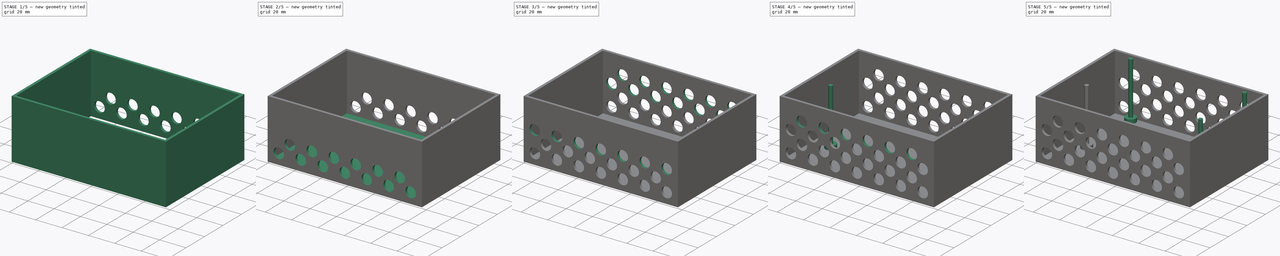
[diagram: build sequence overview — one tinted view per stage of 5, left to right]
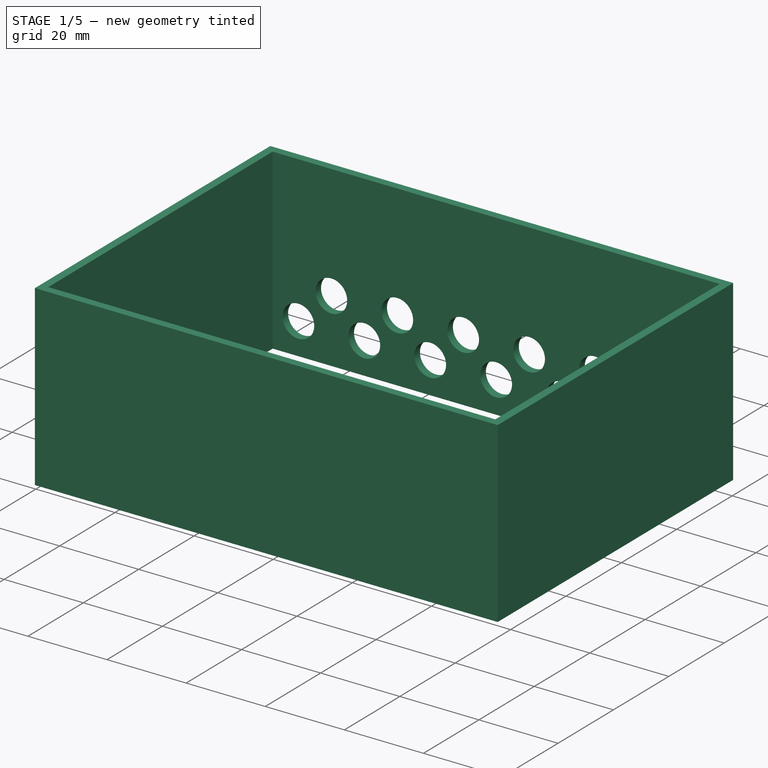
[diagram: stage 1 of 5 — iso view after this stage's code; geometry added in this stage tinted green]
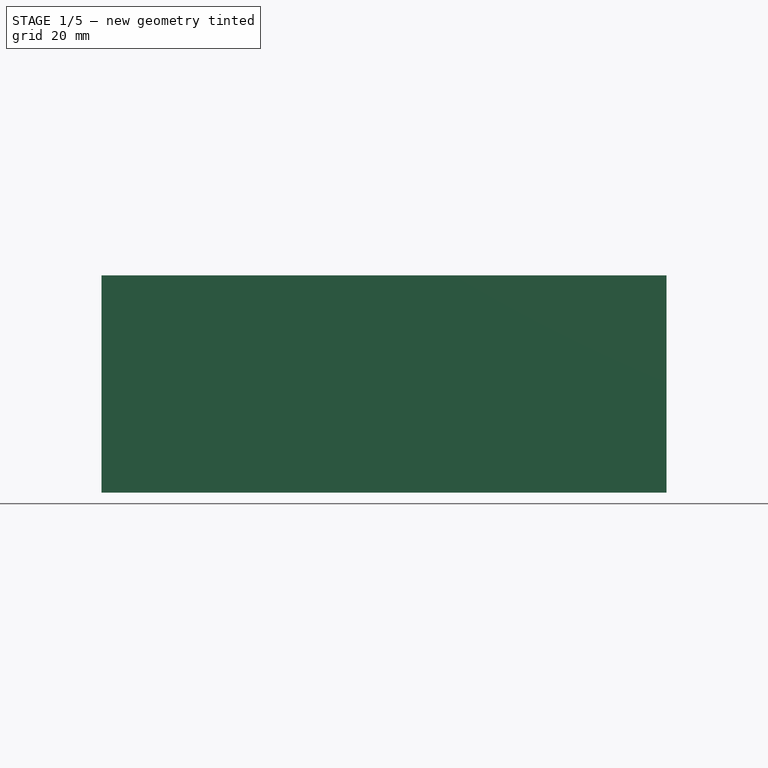
[diagram: stage 1 of 5 — front view after this stage's code; geometry added in this stage tinted green]
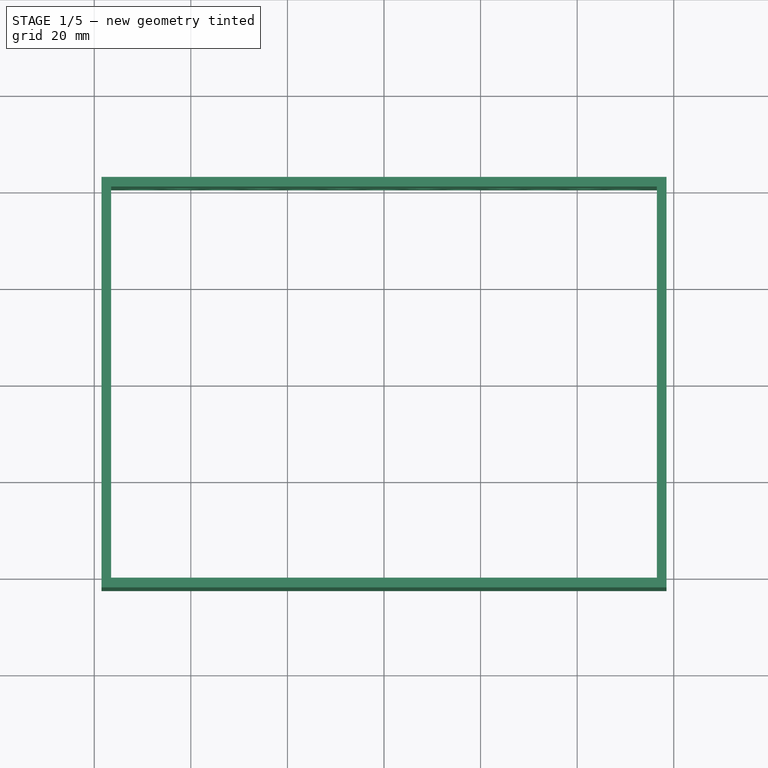
[diagram: stage 1 of 5 — top view after this stage's code; geometry added in this stage tinted green]
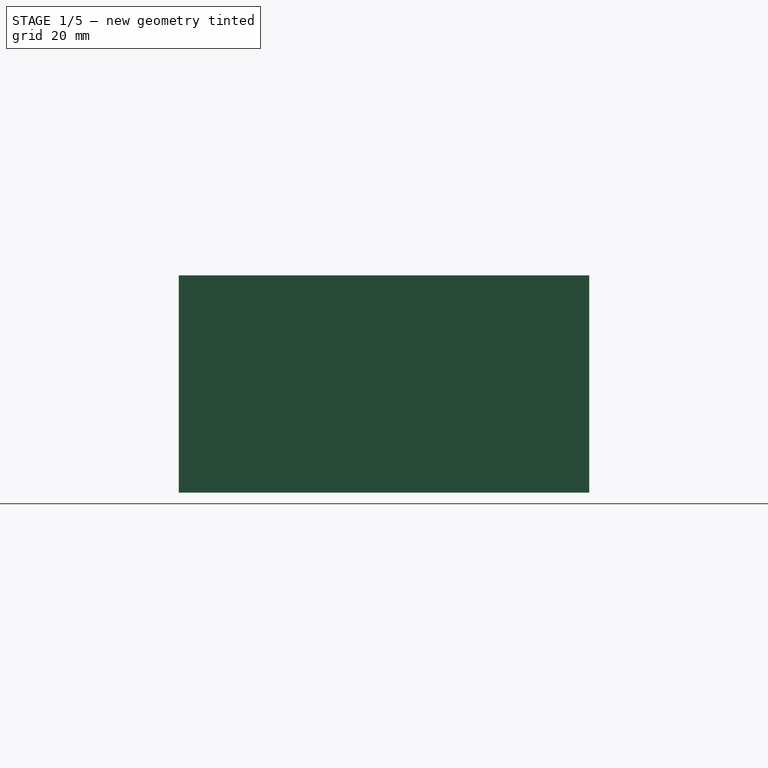
[diagram: stage 1 of 5 — right view after this stage's code; geometry added in this stage tinted green]
FCSTD DOCUMENT  (FreeCAD 0.14R3702 (Git))
Label: Modelodelgabinete2
License: CC-BY 3.0
LicenseURL: http://creativecommons.org/licenses/by/3.0/
objects: Sketcher::SketchObject×17, PartDesign::LinearPattern×10, PartDesign::Pad×8, PartDesign::Pocket×8
note: 59 computed .brp shape members not serialized (recipe doc carries the construction recipe); baked Part::Feature solids carry a one-line shape summary decoded from their .brp

FEATURE [Sketcher::SketchObject] Sketch
  sketch-geometry (8):
    g0: LineSegment StartX=-58.5 StartY=-42.5 StartZ=0 EndX=58.5 EndY=-42.5 EndZ=0
    g1: LineSegment StartX=58.5 StartY=-42.5 StartZ=0 EndX=58.5 EndY=42.5 EndZ=0
    g2: LineSegment StartX=58.5 StartY=42.5 StartZ=0 EndX=-58.5 EndY=42.5 EndZ=0
    g3: LineSegment StartX=-58.5 StartY=42.5 StartZ=0 EndX=-58.5 EndY=-42.5 EndZ=0
    g4: LineSegment StartX=-56.5 StartY=-40.5 StartZ=0 EndX=56.5 EndY=-40.5 EndZ=0
    g5: LineSegment StartX=56.5 StartY=-40.5 StartZ=0 EndX=56.5 EndY=40.5 EndZ=0
    g6: LineSegment StartX=56.5 StartY=40.5 StartZ=0 EndX=-56.5 EndY=40.5 EndZ=0
    g7: LineSegment StartX=-56.5 StartY=40.5 StartZ=0 EndX=-56.5 EndY=-40.5 EndZ=0
  constraints (24):
    c: Coincident(g0,g1)
    c: Coincident(g1,g2)
    c: Coincident(g2,g3)
    c: Coincident(g3,g0)
    c: Horizontal(g0)
    c: Horizontal(g2)
    c: Vertical(g1)
    c: Vertical(g3)
    c: DistanceY(g3) = -85
    c: DistanceX(g0) = 117
    c: DistanceY(g-1,g0) = -42.5
    c: DistanceX(g-1,g0) = -58.5
    c: Coincident(g4,g5)
    c: Coincident(g5,g6)
    c: Coincident(g6,g7)
    c: Coincident(g7,g4)
    c: Horizontal(g4)
    c: Horizontal(g6)
    c: Vertical(g5)
    c: Vertical(g7)
    c: DistanceY(g0,g4) = 2
    c: DistanceX(g0,g4) = 2
    c: DistanceX(g5,g1) = 2
    c: DistanceY(g1,g5) = -2
FEATURE [PartDesign::Pad] Pad
  Length = 45
  Length2 = 100
  Sketch = -> Sketch
  Type = 0
FEATURE [Sketcher::SketchObject] Sketch001
  Placement = pos=(0,42.5,0) rot=(0,0.707107,0.707107;3.14159rad)
  Support = -> Pad [Face3]
  sketch-geometry (1):
    g0: Circle CenterX=-50 CenterY=8 CenterZ=0 NormalX=0 NormalY=0 NormalZ=1 Radius=4
  constraints (3):
    c: DistanceX(g-1,g0) = -50
    c: DistanceY(g-1,g0) = 8
    c: Radius(g0) = 4
FEATURE [PartDesign::Pocket] Pocket
  Length = 5
  Sketch = -> Sketch001
  Type = 0
FEATURE [PartDesign::LinearPattern] LinearPattern
  Direction = -> Sketch001 [H_Axis]
  Length = 100
  Occurrences = 7
  Originals = -> [Pocket]
FEATURE [Sketcher::SketchObject] Sketch002
  Placement = pos=(0,42.5,0) rot=(0,0.707107,0.707107;3.14159rad)
  Support = -> LinearPattern [Face6]
  sketch-geometry (1):
    g0: Circle CenterX=-41.66 CenterY=16 CenterZ=0 NormalX=0 NormalY=0 NormalZ=1 Radius=4
  constraints (3):
    c: Radius(g0) = 4
    c: DistanceX(g-1,g0) = -41.66
    c: DistanceY(g-1,g0) = 16
FEATURE [PartDesign::Pocket] Pocket001
  Length = 5
  Sketch = -> Sketch002
  Type = 0
FEATURE [PartDesign::LinearPattern] LinearPattern001
  Direction = -> Sketch002 [H_Axis]
  Length = 83.33
  Occurrences = 6
  Originals = -> [Pocket001]
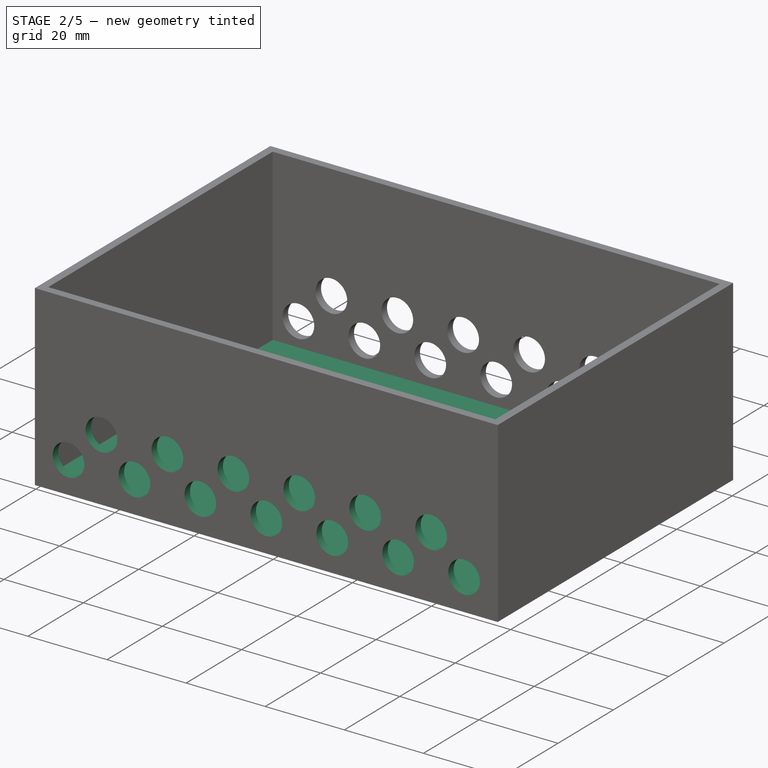
[diagram: stage 2 of 5 — iso view after this stage's code; geometry added in this stage tinted green]
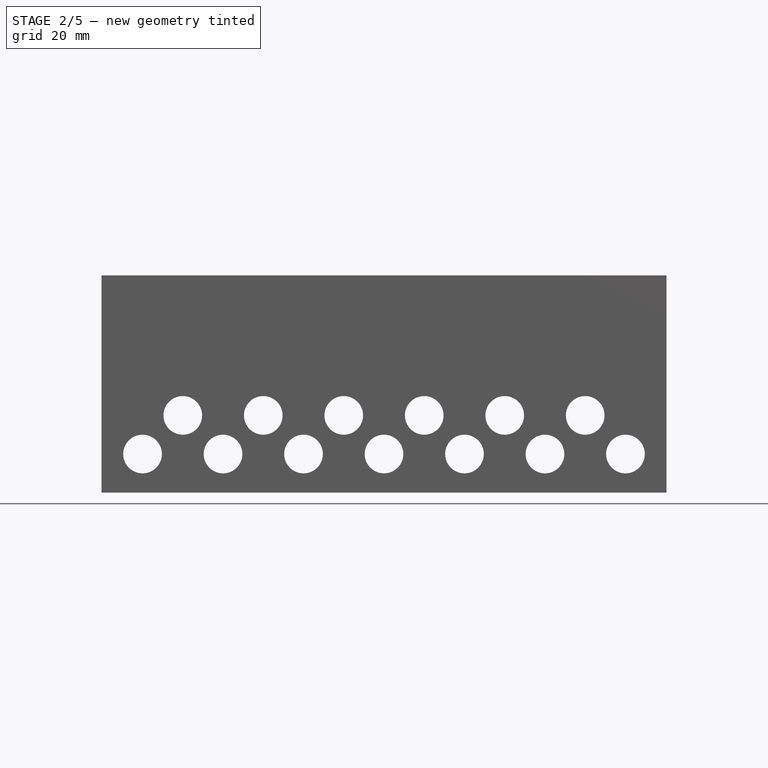
[diagram: stage 2 of 5 — front view after this stage's code; geometry added in this stage tinted green]
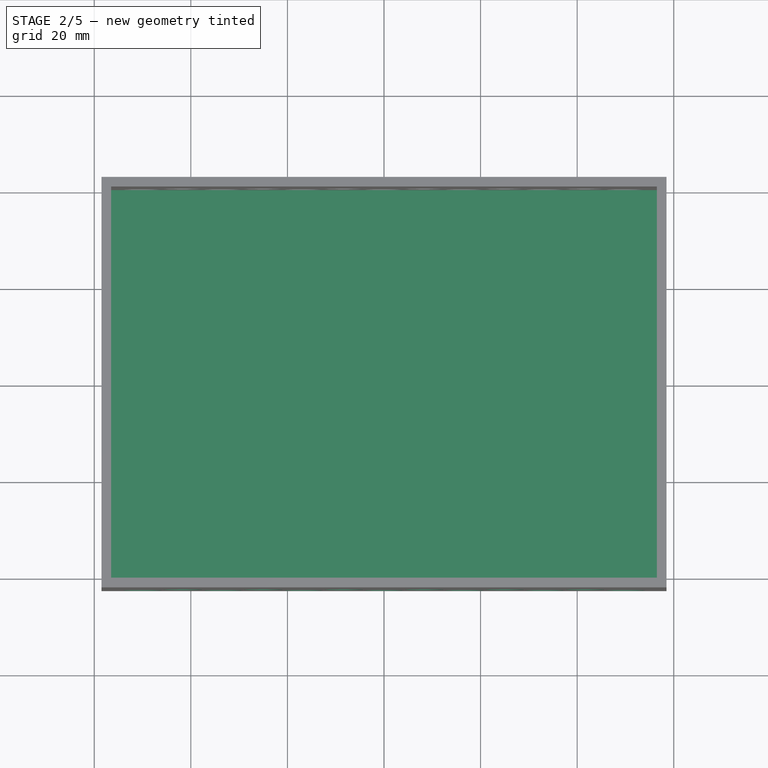
[diagram: stage 2 of 5 — top view after this stage's code; geometry added in this stage tinted green]
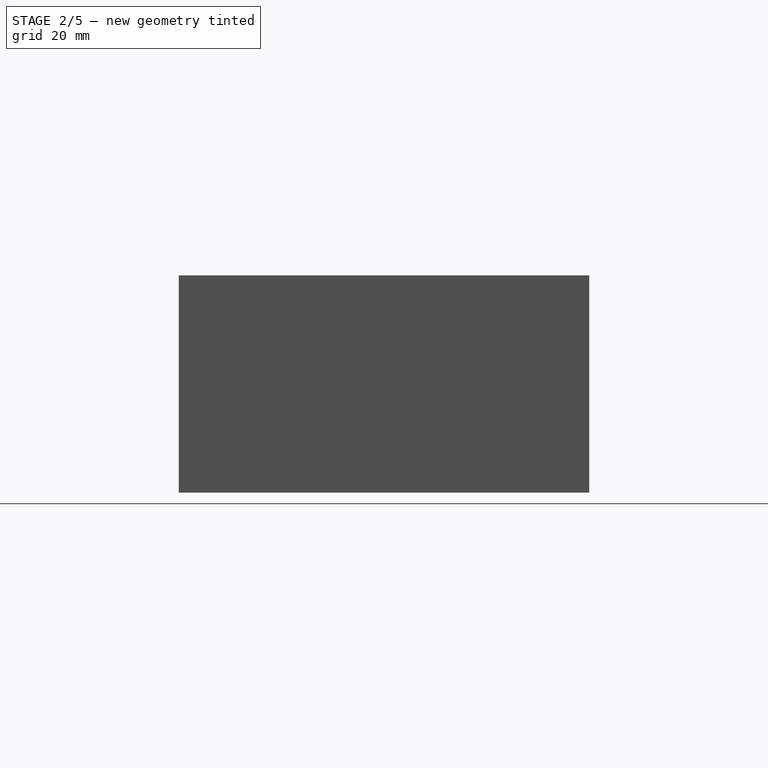
[diagram: stage 2 of 5 — right view after this stage's code; geometry added in this stage tinted green]
FEATURE [Sketcher::SketchObject] Sketch003
  Placement = pos=(0,0,0) rot=(1,0,0;3.14159rad)
  Support = -> LinearPattern001 [Face4]
  sketch-geometry (4):
    g0: LineSegment StartX=-58.5 StartY=-42.5 StartZ=0 EndX=58.5 EndY=-42.5 EndZ=0
    g1: LineSegment StartX=58.5 StartY=-42.5 StartZ=0 EndX=58.5 EndY=42.5 EndZ=0
    g2: LineSegment StartX=58.5 StartY=42.5 StartZ=0 EndX=-58.5 EndY=42.5 EndZ=0
    g3: LineSegment StartX=-58.5 StartY=42.5 StartZ=0 EndX=-58.5 EndY=-42.5 EndZ=0
  constraints (12):
    c: Coincident(g0,g1)
    c: Coincident(g1,g2)
    c: Coincident(g2,g3)
    c: Coincident(g3,g0)
    c: Horizontal(g0)
    c: Horizontal(g2)
    c: Vertical(g1)
    c: Vertical(g3)
    c: DistanceY(g1) = 85
    c: DistanceX(g0) = 117
    c: DistanceY(g-1,g0) = -42.5
    c: DistanceX(g-1,g0) = 58.5
FEATURE [PartDesign::Pad] Pad001
  Length = 2
  Length2 = 100
  Reversed = true
  Sketch = -> Sketch003
  Type = 0
FEATURE [Sketcher::SketchObject] Sketch004
  Placement = pos=(0,-42.5,0) rot=(1,0,0;1.5708rad)
  Support = -> Pad001 [Face2]
  sketch-geometry (1):
    g0: Circle CenterX=-50 CenterY=8 CenterZ=0 NormalX=0 NormalY=0 NormalZ=1 Radius=4
  constraints (3):
    c: Radius(g0) = 4
    c: DistanceX(g-1,g0) = -50
    c: DistanceY(g-1,g0) = 8
FEATURE [PartDesign::Pocket] Pocket002
  Length = 5
  Sketch = -> Sketch004
  Type = 0
FEATURE [PartDesign::LinearPattern] LinearPattern002
  Direction = -> Sketch004 [H_Axis]
  Length = 100
  Occurrences = 7
  Originals = -> [Pocket002]
FEATURE [Sketcher::SketchObject] Sketch005
  Placement = pos=(0,-42.5,0) rot=(1,0,0;1.5708rad)
  Support = -> LinearPattern002 [Face2]
  sketch-geometry (1):
    g0: Circle CenterX=-41.666 CenterY=16 CenterZ=0 NormalX=0 NormalY=0 NormalZ=1 Radius=4
  constraints (3):
    c: DistanceY(g-1,g0) = 16
    c: Radius(g0) = 4
    c: DistanceX(g-1,g0) = -41.666
FEATURE [PartDesign::Pocket] Pocket003
  Length = 5
  Sketch = -> Sketch005
  Type = 0
FEATURE [PartDesign::LinearPattern] LinearPattern003
  Direction = -> Sketch005 [H_Axis]
  Length = 83.33
  Occurrences = 6
  Originals = -> [Pocket003]
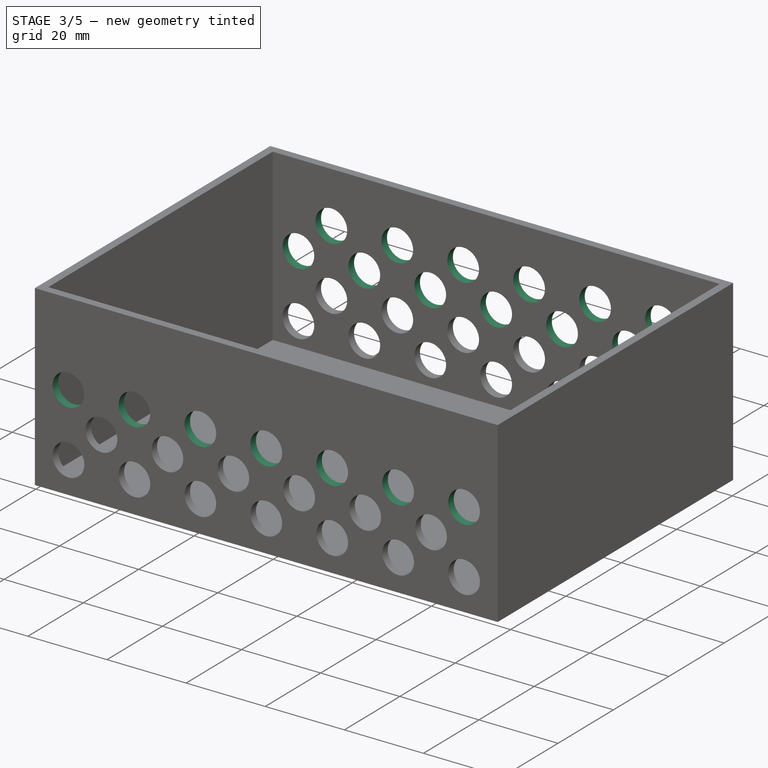
[diagram: stage 3 of 5 — iso view after this stage's code; geometry added in this stage tinted green]
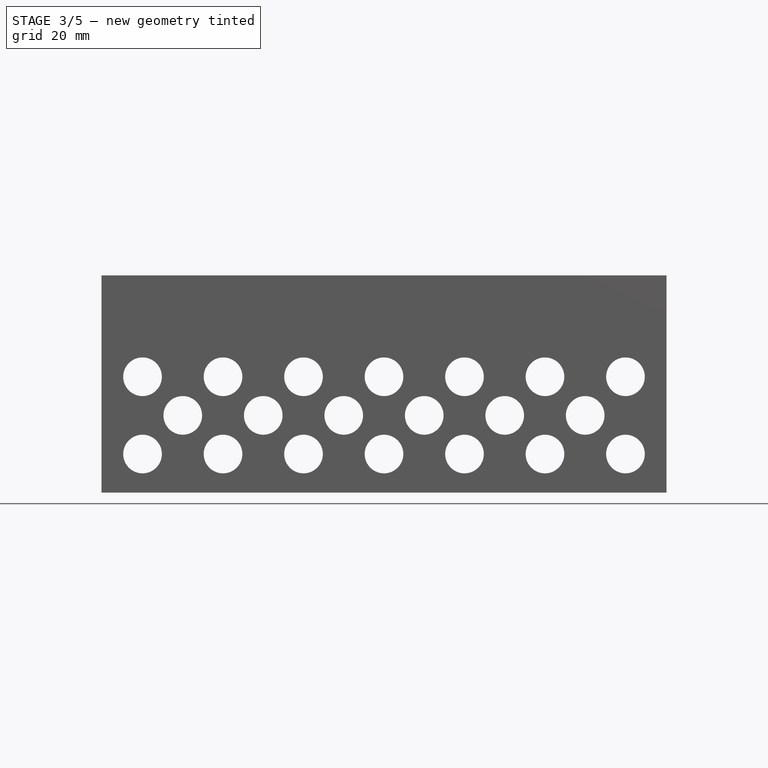
[diagram: stage 3 of 5 — front view after this stage's code; geometry added in this stage tinted green]
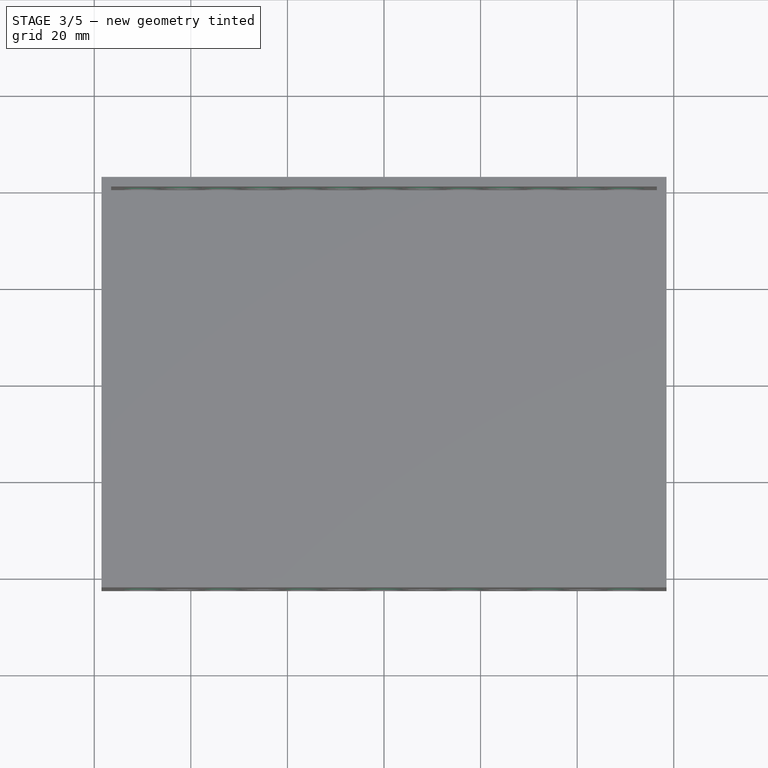
[diagram: stage 3 of 5 — top view after this stage's code; geometry added in this stage tinted green]
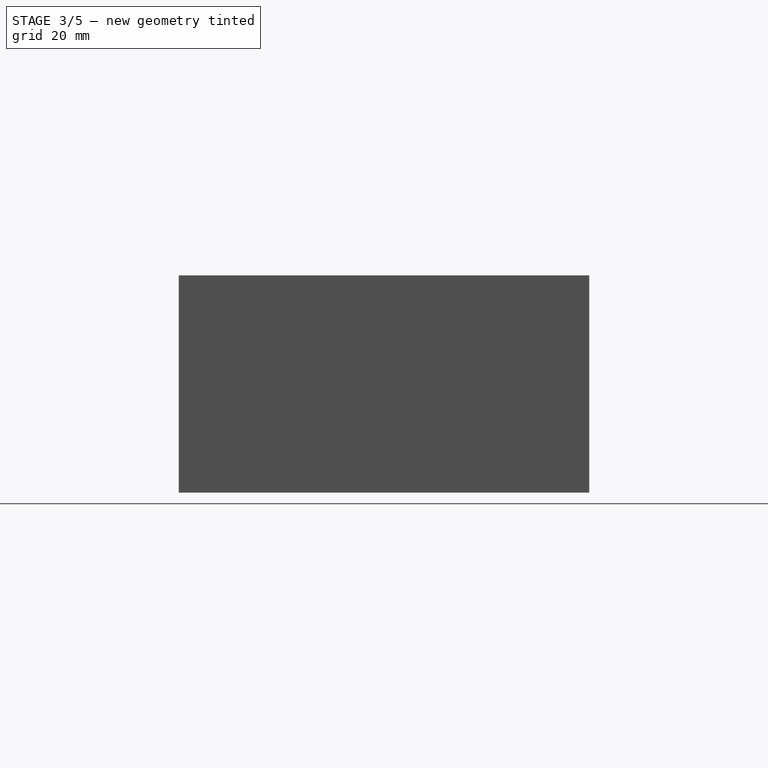
[diagram: stage 3 of 5 — right view after this stage's code; geometry added in this stage tinted green]
FEATURE [Sketcher::SketchObject] Sketch006
  Placement = pos=(0,-42.5,0) rot=(1,0,0;1.5708rad)
  Support = -> LinearPattern003 [Face2]
  sketch-geometry (1):
    g0: Circle CenterX=-50 CenterY=24 CenterZ=0 NormalX=0 NormalY=0 NormalZ=1 Radius=4
  constraints (3):
    c: Radius(g0) = 4
    c: DistanceX(g-1,g0) = -50
    c: DistanceY(g-1,g0) = 24
FEATURE [PartDesign::Pocket] Pocket004
  Length = 5
  Sketch = -> Sketch006
  Type = 0
FEATURE [PartDesign::LinearPattern] LinearPattern004
  Direction = -> Sketch006 [H_Axis]
  Length = 100
  Occurrences = 7
  Originals = -> [Pocket004]
FEATURE [Sketcher::SketchObject] Sketch007
  Placement = pos=(0,42.5,0) rot=(0,0.707107,0.707107;3.14159rad)
  Support = -> LinearPattern004 [Face4]
  sketch-geometry (1):
    g0: Circle CenterX=-50 CenterY=24 CenterZ=0 NormalX=0 NormalY=0 NormalZ=1 Radius=4
  constraints (3):
    c: Radius(g0) = 4
    c: DistanceX(g-1,g0) = -50
    c: DistanceY(g-1,g0) = 24
FEATURE [PartDesign::Pocket] Pocket005
  Length = 5
  Sketch = -> Sketch007
  Type = 0
FEATURE [PartDesign::LinearPattern] LinearPattern005
  Direction = -> Sketch007 [H_Axis]
  Length = 100
  Occurrences = 7
  Originals = -> [Pocket005]
FEATURE [Sketcher::SketchObject] Sketch008
  Placement = pos=(0,42.5,0) rot=(0,0.707107,0.707107;3.14159rad)
  Support = -> LinearPattern005 [Face4]
  sketch-geometry (1):
    g0: Circle CenterX=-41.66 CenterY=32 CenterZ=0 NormalX=0 NormalY=0 NormalZ=1 Radius=4
  constraints (3):
    c: Radius(g0) = 4
    c: DistanceY(g-1,g0) = 32
    c: DistanceX(g-1,g0) = -41.66
FEATURE [PartDesign::Pocket] Pocket006
  Length = 5
  Sketch = -> Sketch008
  Type = 0
FEATURE [PartDesign::LinearPattern] LinearPattern006
  Direction = -> Sketch008 [H_Axis]
  Length = 83.33
  Occurrences = 6
  Originals = -> [Pocket006]
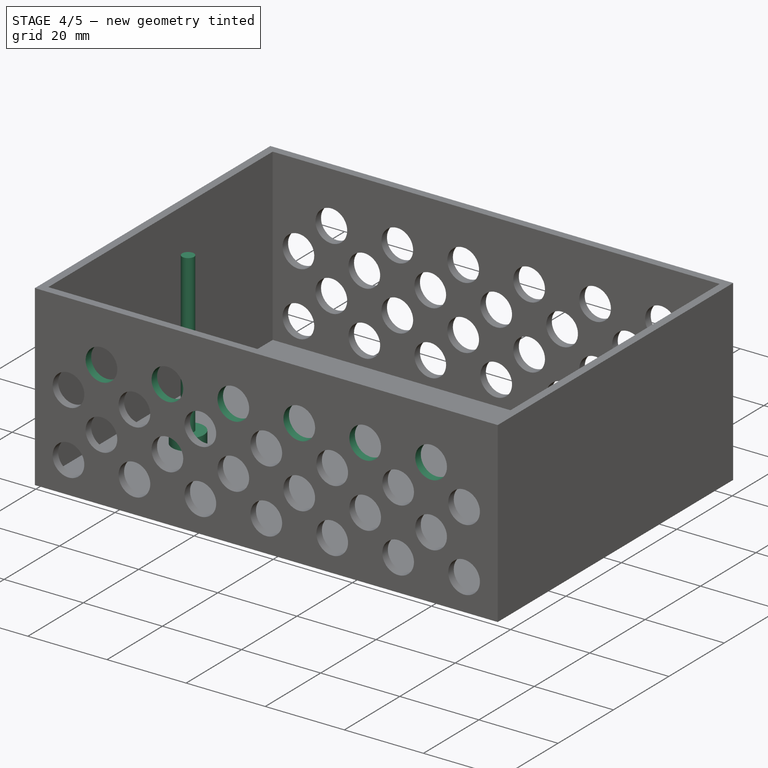
[diagram: stage 4 of 5 — iso view after this stage's code; geometry added in this stage tinted green]
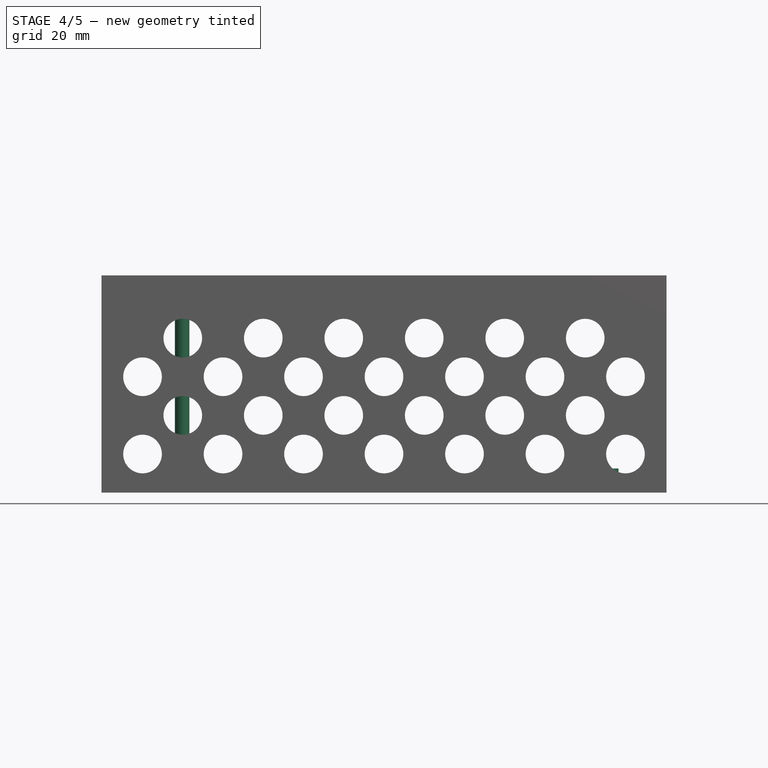
[diagram: stage 4 of 5 — front view after this stage's code; geometry added in this stage tinted green]
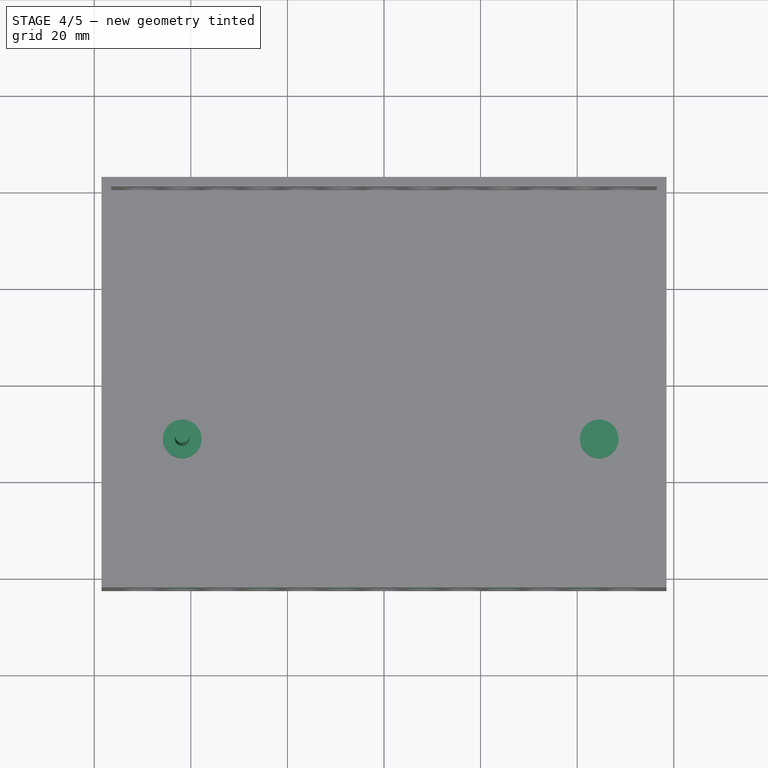
[diagram: stage 4 of 5 — top view after this stage's code; geometry added in this stage tinted green]
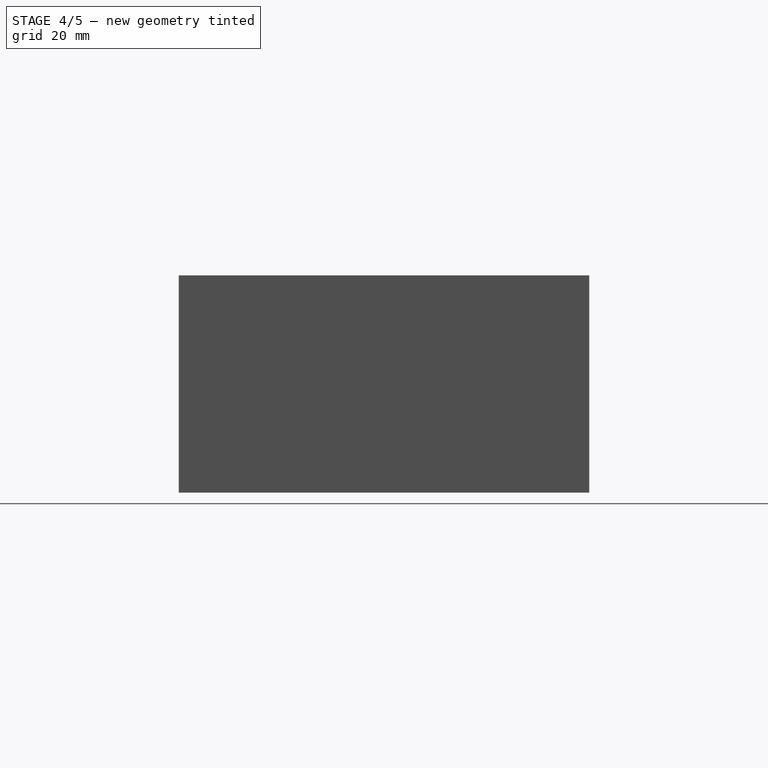
[diagram: stage 4 of 5 — right view after this stage's code; geometry added in this stage tinted green]
FEATURE [Sketcher::SketchObject] Sketch009
  Placement = pos=(0,-42.5,0) rot=(1,0,0;1.5708rad)
  Support = -> LinearPattern006 [Face2]
  sketch-geometry (1):
    g0: Circle CenterX=-41.66 CenterY=32 CenterZ=0 NormalX=0 NormalY=0 NormalZ=1 Radius=4
  constraints (3):
    c: Radius(g0) = 4
    c: DistanceY(g-1,g0) = 32
    c: DistanceX(g-1,g0) = -41.66
FEATURE [PartDesign::Pocket] Pocket007
  Length = 5
  Sketch = -> Sketch009
  Type = 0
FEATURE [PartDesign::LinearPattern] LinearPattern007
  Direction = -> Sketch009 [H_Axis]
  Length = 83.33
  Occurrences = 6
  Originals = -> [Pocket007]
FEATURE [Sketcher::SketchObject] Sketch011
  Placement = pos=(0,0,2) rot=(0,0,1;0rad)
  Support = -> LinearPattern007 [Face66]
  sketch-geometry (2):
    g0: Circle CenterX=-41.795 CenterY=-11.049 CenterZ=0 NormalX=0 NormalY=0 NormalZ=1 Radius=4
    g1: GeomPoint [constr] X=-56.495 Y=40.471 Z=0
  constraints (5):
    c: DistanceY(g1,g0) = -51.52
    c: DistanceY(g-1,g1) = 40.471
    c: DistanceX(g-1,g1) = -56.495
    c: Radius(g0) = 4
    c: DistanceX(g0,g1) = -14.7
FEATURE [PartDesign::Pad] Pad003
  Length = 3
  Length2 = 100
  Sketch = -> Sketch011
  Type = 0
FEATURE [PartDesign::LinearPattern] LinearPattern009
  Direction = -> Sketch011 [H_Axis]
  Length = 86.36
  Occurrences = 2
  Originals = -> [Pad003]
FEATURE [Sketcher::SketchObject] Sketch014
  ExternalGeometry = -> [LinearPattern009]
  Placement = pos=(0,0,5) rot=(0,0,1;0rad)
  Support = -> LinearPattern009 [Face1]
  sketch-geometry (1):
    g0: Circle CenterX=-41.795 CenterY=-11.049 CenterZ=0 NormalX=0 NormalY=0 NormalZ=1 Radius=1.5
  constraints (3):
    c: DistanceY(g-3,g0) = 0
    c: DistanceX(g0,g-3) = 0
    c: Radius(g0) = 1.5
FEATURE [PartDesign::Pad] Pad005
  Length = 40
  Length2 = 100
  Sketch = -> Sketch014
  Type = 0
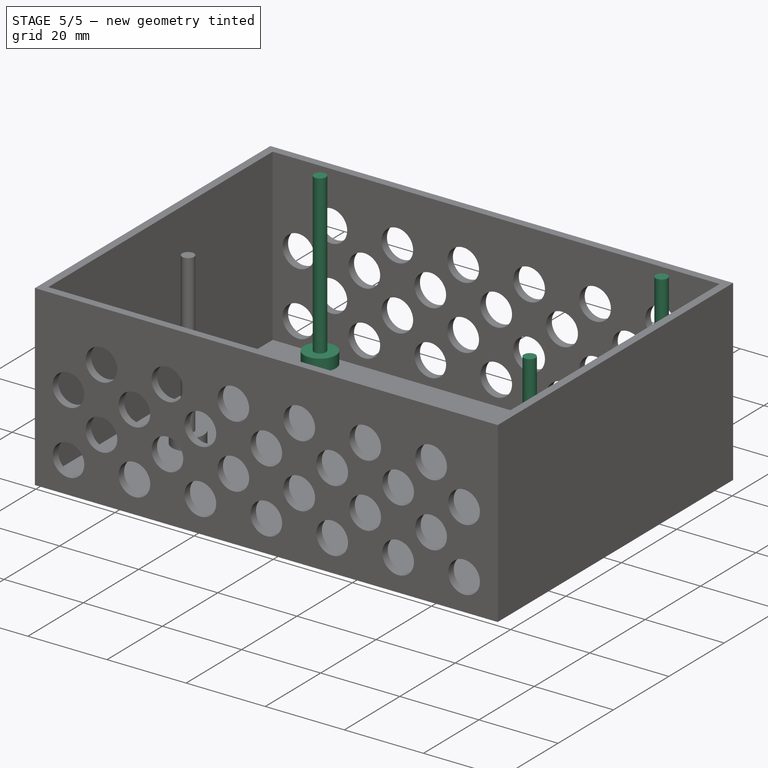
[diagram: stage 5 of 5 — iso view after this stage's code; geometry added in this stage tinted green]
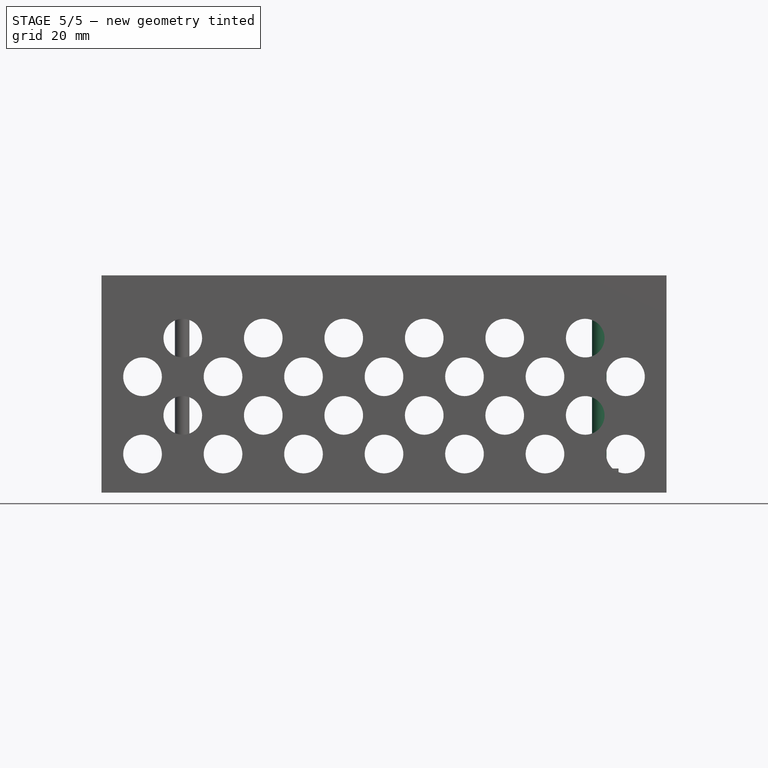
[diagram: stage 5 of 5 — front view after this stage's code; geometry added in this stage tinted green]
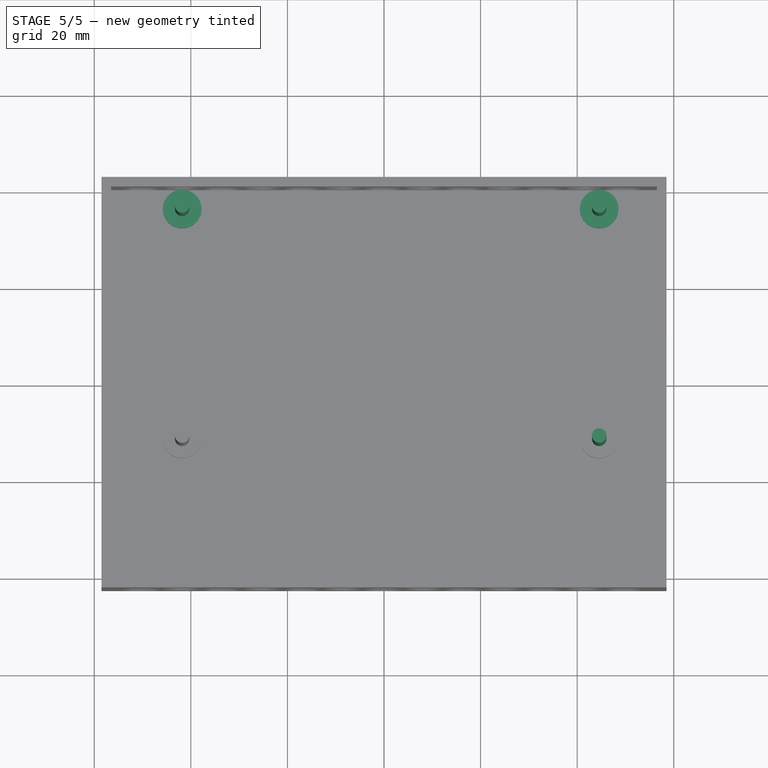
[diagram: stage 5 of 5 — top view after this stage's code; geometry added in this stage tinted green]
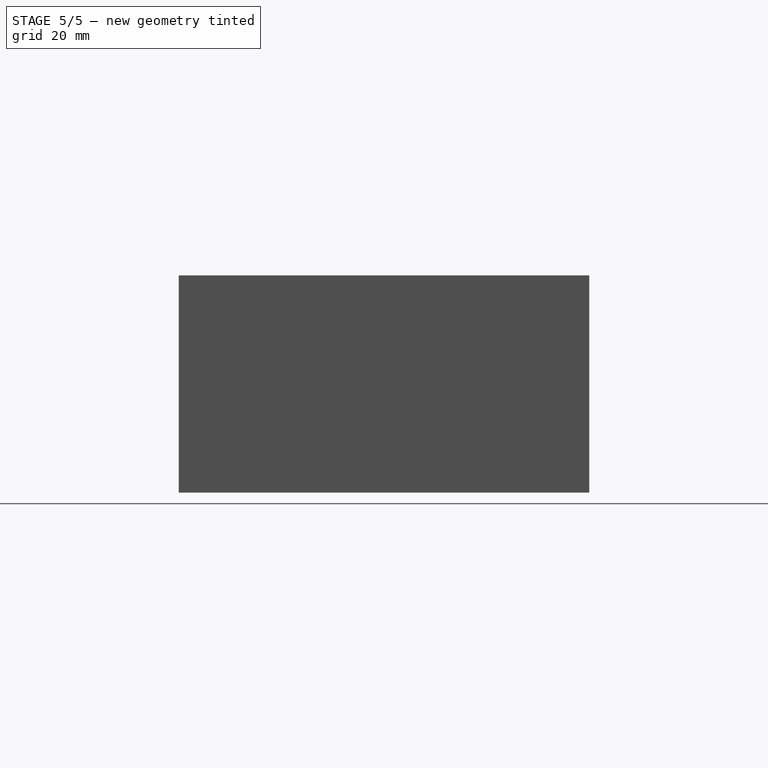
[diagram: stage 5 of 5 — right view after this stage's code; geometry added in this stage tinted green]
FEATURE [Sketcher::SketchObject] Sketch010
  Placement = pos=(0,0,2) rot=(0,0,1;0rad)
  Support = -> LinearPattern007 [Face66]
  sketch-geometry (2):
    g0: Circle CenterX=-41.795 CenterY=36.571 CenterZ=0 NormalX=0 NormalY=0 NormalZ=1 Radius=4
    g1: GeomPoint [constr] X=-56.495 Y=40.471 Z=0
  constraints (5):
    c: DistanceY(g1,g0) = -3.9
    c: DistanceY(g-1,g1) = 40.471
    c: DistanceX(g-1,g1) = -56.495
    c: Radius(g0) = 4
    c: DistanceX(g0,g1) = -14.7
FEATURE [PartDesign::Pad] Pad002
  Length = 3
  Length2 = 100
  Sketch = -> Sketch010
  Type = 0
FEATURE [PartDesign::LinearPattern] LinearPattern008
  Direction = -> Sketch010 [H_Axis]
  Length = 86.36
  Occurrences = 2
  Originals = -> [Pad002]
FEATURE [Sketcher::SketchObject] Sketch012
FEATURE [Sketcher::SketchObject] Sketch013
  ExternalGeometry = -> [LinearPattern008]
  Placement = pos=(0,0,5) rot=(0,0,1;0rad)
  Support = -> LinearPattern008 [Face71]
  sketch-geometry (1):
    g0: Circle CenterX=-41.795 CenterY=36.571 CenterZ=0 NormalX=0 NormalY=0 NormalZ=1 Radius=1.5
  constraints (3):
    c: DistanceY(g0,g-3) = 0
    c: DistanceX(g0,g-3) = 0
    c: Radius(g0) = 1.5
FEATURE [PartDesign::Pad] Pad004
  Length = 40
  Length2 = 100
  Sketch = -> Sketch013
  Type = 0
FEATURE [Sketcher::SketchObject] Sketch015
  ExternalGeometry = -> [Pad004]
  Placement = pos=(0,0,5) rot=(0,0,1;0rad)
  Support = -> Pad004 [Face68]
  sketch-geometry (1):
    g0: Circle CenterX=44.565 CenterY=36.571 CenterZ=0 NormalX=0 NormalY=0 NormalZ=1 Radius=1.5
  constraints (2):
    c: Coincident(g0,g-3)
    c: Radius(g0) = 1.5
FEATURE [PartDesign::Pad] Pad006
  Length = 40
  Length2 = 100
  Sketch = -> Sketch015
  Type = 0
FEATURE [Sketcher::SketchObject] Sketch016
  ExternalGeometry = -> [Pad005]
  Placement = pos=(0,0,5) rot=(0,0,1;0rad)
  Support = -> Pad005 [Face63]
  sketch-geometry (1):
    g0: Circle CenterX=44.565 CenterY=-11.049 CenterZ=0 NormalX=0 NormalY=0 NormalZ=1 Radius=1.5
  constraints (2):
    c: Coincident(g0,g-3)
    c: Radius(g0) = 1.5
FEATURE [PartDesign::Pad] Pad007
  Length = 40
  Length2 = 100
  Sketch = -> Sketch016
  Type = 0
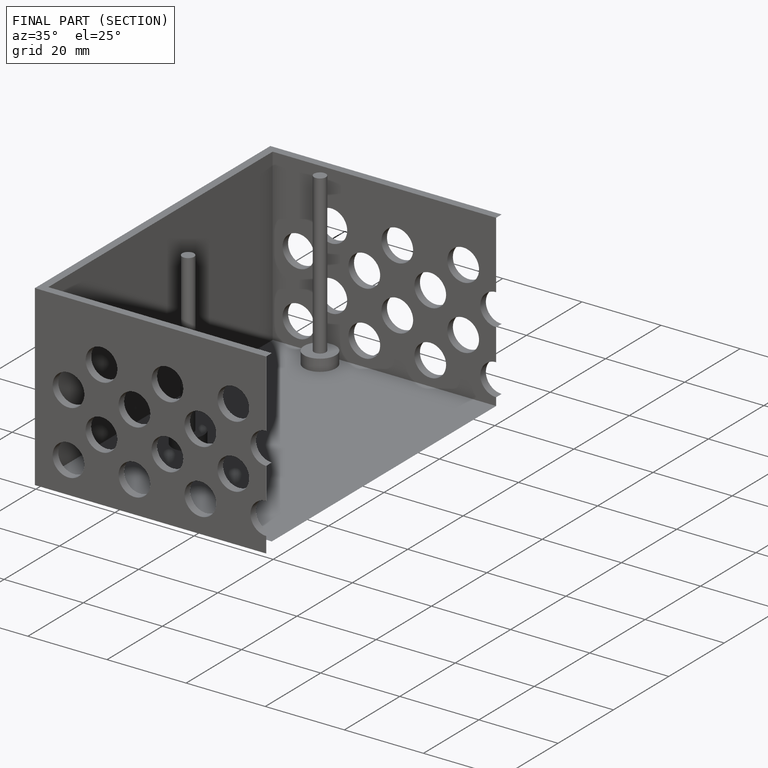
[diagram: finished part — half-section view (interior)]
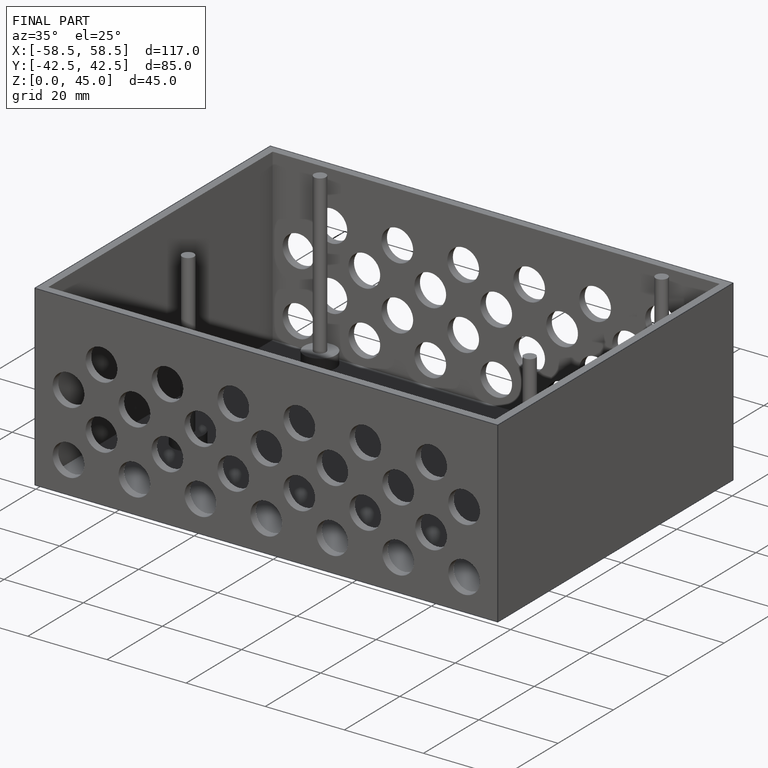
[diagram: finished part — iso view with bounding-box wireframe]
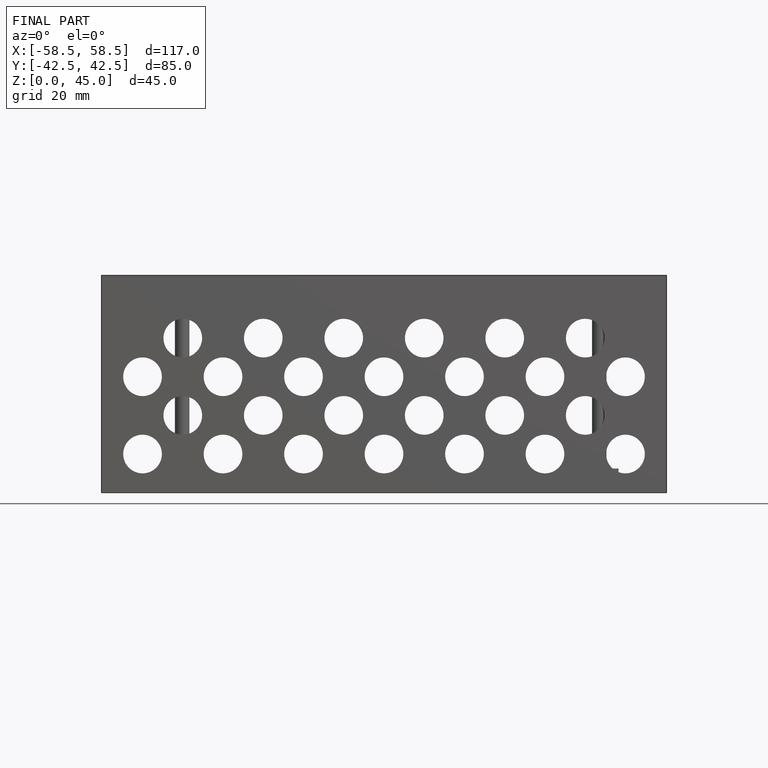
[diagram: finished part — front view with bounding-box wireframe]
